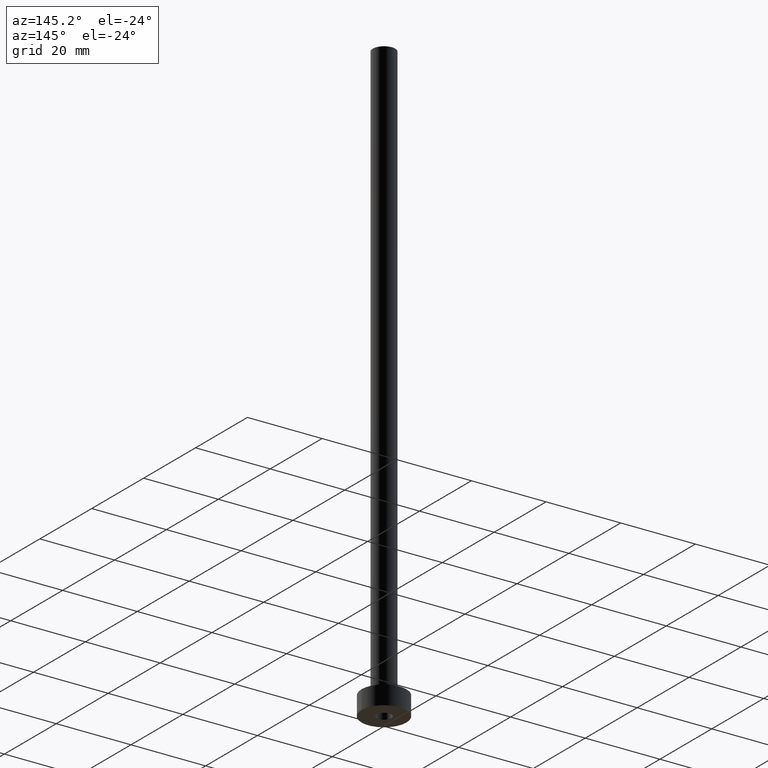
[diagram: clean part render]
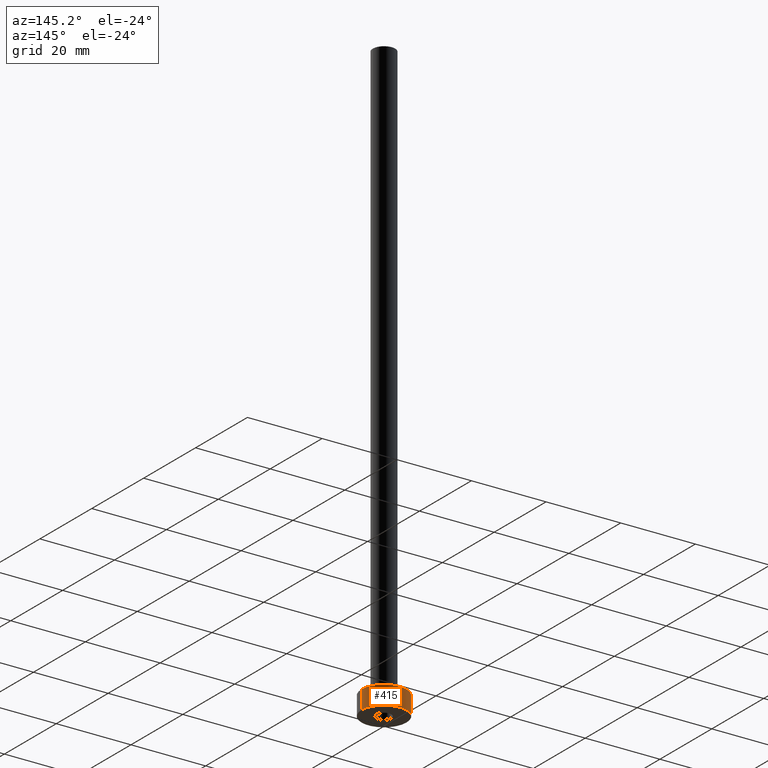
[diagram: same view with one face highlighted and labeled with its STEP entity id]
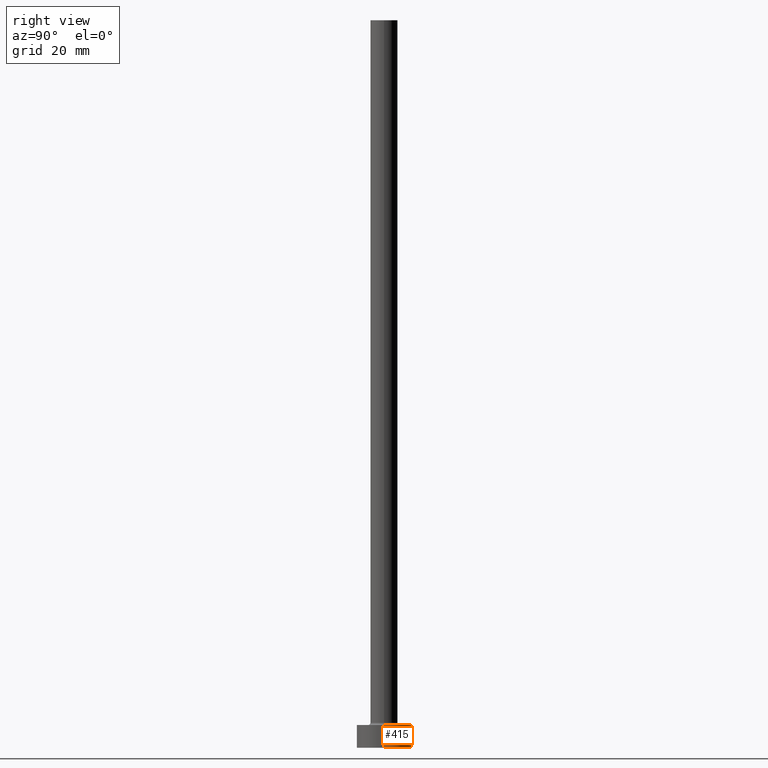
[diagram: same view with one face highlighted and labeled with its STEP entity id]
A machine part, auxiliary view. The second image highlights one B-rep face of the part: STEP entity #415.
A second angle (right view) of the same face is appended — the face is thin or edge-on in the first view.
In plain terms, the highlighted cylindrical surface (edge-blend (fillet) strip) has radius 6 mm, axis along (-0, -0, -1).
Its self-contained STEP definition (entity closure, byte-faithful):
#9 = AXIS2_PLACEMENT_3D ( 'NONE', #444, #271, #241 ) ;
#12 = CARTESIAN_POINT ( 'NONE',  ( 0.000000000000000000, 0.000000000000000000, 0.000000000000000000 ) ) ;
#35 = CIRCLE ( 'NONE', #428, 6.000000000000000888 ) ;
#48 = DIRECTION ( 'NONE',  ( -0.000000000000000000, -0.000000000000000000, -1.000000000000000000 ) ) ;
#77 = LINE ( 'NONE', #407, #298 ) ;
#84 = DIRECTION ( 'NONE',  ( -0.000000000000000000, -0.000000000000000000, -1.000000000000000000 ) ) ;
#95 = ORIENTED_EDGE ( 'NONE', *, *, #205, .F. ) ;
#96 = CARTESIAN_POINT ( 'NONE',  ( 6.000000000000000888, 7.347880794884120722E-16, 0.000000000000000000 ) ) ;
#97 = EDGE_CURVE ( 'NONE', #200, #133, #35, .T. ) ;
#102 = DIRECTION ( 'NONE',  ( -1.000000000000000000, 0.000000000000000000, 0.000000000000000000 ) ) ;
#106 = CIRCLE ( 'NONE', #9, 6.000000000000000888 ) ;
#112 = EDGE_CURVE ( 'NONE', #356, #133, #77, .T. ) ;
#120 = CARTESIAN_POINT ( 'NONE',  ( 6.000000000000000888, 7.347880794884120722E-16, 5.000000000000000000 ) ) ;
#121 = VECTOR ( 'NONE', #48, 1000.000000000000000 ) ;
#129 = EDGE_CURVE ( 'NONE', #213, #200, #326, .T. ) ;
#133 = VERTEX_POINT ( 'NONE', #199 ) ;
#136 = CARTESIAN_POINT ( 'NONE',  ( -6.000000000000000888, 0.000000000000000000, 5.000000000000000000 ) ) ;
#138 = CARTESIAN_POINT ( 'NONE',  ( 0.000000000000000000, 0.000000000000000000, 5.000000000000000000 ) ) ;
#146 = ORIENTED_EDGE ( 'NONE', *, *, #129, .T. ) ;
#160 = ORIENTED_EDGE ( 'NONE', *, *, #112, .F. ) ;
#165 = CARTESIAN_POINT ( 'NONE',  ( 6.000000000000000888, 7.347880794884120722E-16, 5.000000000000000000 ) ) ;
#199 = CARTESIAN_POINT ( 'NONE',  ( -6.000000000000000888, 0.000000000000000000, 0.000000000000000000 ) ) ;
#200 = VERTEX_POINT ( 'NONE', #96 ) ;
#205 = EDGE_CURVE ( 'NONE', #213, #356, #106, .T. ) ;
#213 = VERTEX_POINT ( 'NONE', #165 ) ;
#241 = DIRECTION ( 'NONE',  ( 1.000000000000000000, 0.000000000000000000, 0.000000000000000000 ) ) ;
#255 = EDGE_LOOP ( 'NONE', ( #95, #146, #399, #160 ) ) ;
#257 = AXIS2_PLACEMENT_3D ( 'NONE', #138, #279, #102 ) ;
#271 = DIRECTION ( 'NONE',  ( 0.000000000000000000, 0.000000000000000000, 1.000000000000000000 ) ) ;
#276 = FACE_OUTER_BOUND ( 'NONE', #255, .T. ) ;
#279 = DIRECTION ( 'NONE',  ( -0.000000000000000000, -0.000000000000000000, -1.000000000000000000 ) ) ;
#289 = DIRECTION ( 'NONE',  ( 1.000000000000000000, 0.000000000000000000, 0.000000000000000000 ) ) ;
#295 = DIRECTION ( 'NONE',  ( 0.000000000000000000, 0.000000000000000000, 1.000000000000000000 ) ) ;
#298 = VECTOR ( 'NONE', #84, 1000.000000000000000 ) ;
#326 = LINE ( 'NONE', #120, #121 ) ;
#349 = CYLINDRICAL_SURFACE ( 'NONE', #257, 6.000000000000000888 ) ;
#356 = VERTEX_POINT ( 'NONE', #136 ) ;
#399 = ORIENTED_EDGE ( 'NONE', *, *, #97, .T. ) ;
#407 = CARTESIAN_POINT ( 'NONE',  ( -6.000000000000000888, 0.000000000000000000, 5.000000000000000000 ) ) ;
#415 = ADVANCED_FACE ( 'NONE', ( #276 ), #349, .T. ) ;
#428 = AXIS2_PLACEMENT_3D ( 'NONE', #12, #295, #289 ) ;
#444 = CARTESIAN_POINT ( 'NONE',  ( 0.000000000000000000, 0.000000000000000000, 5.000000000000000000 ) ) ;